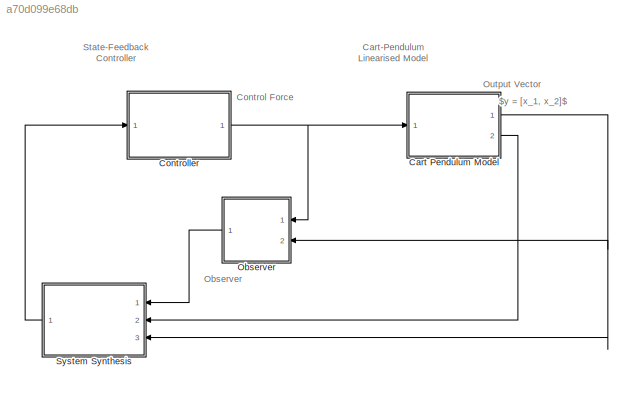
MODEL slx_a70d099e68db
KIND model
CONFIG AbsTol = auto
CONFIG EnableMultiTasking = off
CONFIG FixedStep = auto
CONFIG MaxStep = auto
CONFIG MinStep = auto
CONFIG RelTol = 1e-3
CONFIG SampleTimeConstraint = Unconstrained
CONFIG Solver = ode4
CONFIG SolverName = ode4
CONFIG StartTime = 0.0
CONFIG StopTime = 10.0
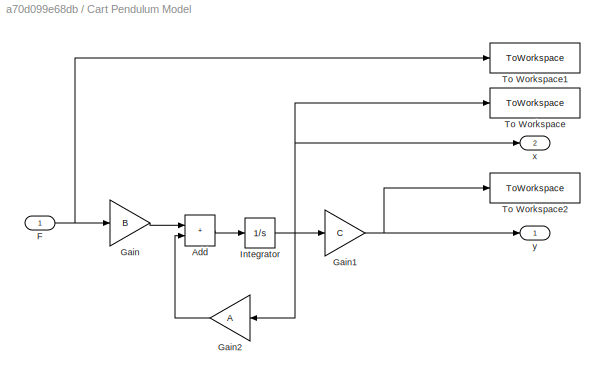
BLOCK [SubSystem] Cart Pendulum Model 
  Ports = [1, 2]
  RequestExecContextInheritance = off
BLOCK [Sum] Cart Pendulum Model /Add
  IconShape = rectangular
  Ports = [2, 1]
BLOCK [Inport] Cart Pendulum Model /F
BLOCK [Gain] Cart Pendulum Model /Gain
  Gain = B
  Multiplication = Matrix(K*u)
BLOCK [Gain] Cart Pendulum Model /Gain1
  Gain = C
  Multiplication = Matrix(K*u)
BLOCK [Gain] Cart Pendulum Model /Gain2
  Gain = A
  Multiplication = Matrix(K*u)
  NameLocation = top
BLOCK [Integrator] Cart Pendulum Model /Integrator
  InitialCondition = initial_conditions_linear
  Ports = [1, 1]
BLOCK [ToWorkspace] Cart Pendulum Model /To Workspace
  FixptAsFi = on
  MaxDataPoints = inf
  Ports = [1]
  SampleTime = -1
  VariableName = x
BLOCK [ToWorkspace] Cart Pendulum Model /To Workspace1
  FixptAsFi = on
  MaxDataPoints = inf
  Ports = [1]
  SampleTime = -1
  VariableName = F
BLOCK [ToWorkspace] Cart Pendulum Model /To Workspace2
  FixptAsFi = on
  MaxDataPoints = inf
  Ports = [1]
  SampleTime = -1
  VariableName = y
BLOCK [Outport] Cart Pendulum Model /x
  Port = 2
BLOCK [Outport] Cart Pendulum Model /y
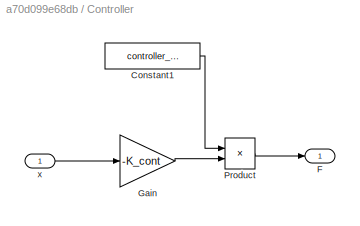
BLOCK [SubSystem] Controller
  Ports = [1, 1]
  RequestExecContextInheritance = off
BLOCK [Constant] Controller/Constant1
  Value = controller_enabled
BLOCK [Outport] Controller/F
BLOCK [Gain] Controller/Gain
  Gain = -K_cont
  Multiplication = Matrix(K*u)
BLOCK [Product] Controller/Product
  Ports = [2, 1]
BLOCK [Inport] Controller/x
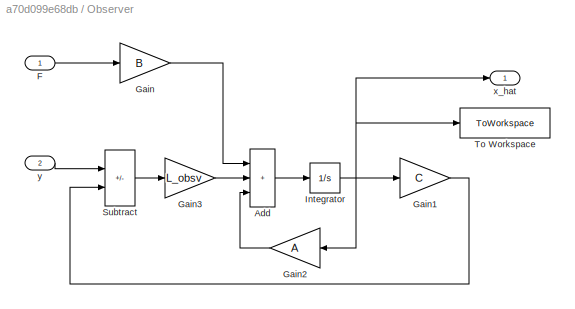
BLOCK [SubSystem] Observer
  Ports = [2, 1]
  RequestExecContextInheritance = off
BLOCK [Sum] Observer/Add
  IconShape = rectangular
  Inputs = 3
  Ports = [3, 1]
BLOCK [Inport] Observer/F
BLOCK [Gain] Observer/Gain
  Gain = B
  Multiplication = Matrix(K*u)
BLOCK [Gain] Observer/Gain1
  Gain = C
  Multiplication = Matrix(K*u)
BLOCK [Gain] Observer/Gain2
  Gain = A
  Multiplication = Matrix(K*u)
  NameLocation = top
BLOCK [Gain] Observer/Gain3
  Gain = L_obsv
  Multiplication = Matrix(K*u)
BLOCK [Integrator] Observer/Integrator
  Ports = [1, 1]
BLOCK [Sum] Observer/Subtract
  IconShape = rectangular
  Inputs = +-
  Ports = [2, 1]
BLOCK [ToWorkspace] Observer/To Workspace
  FixptAsFi = on
  MaxDataPoints = inf
  Ports = [1]
  SampleTime = -1
  VariableName = x_hat
BLOCK [Outport] Observer/x_hat
BLOCK [Inport] Observer/y
  Port = 2
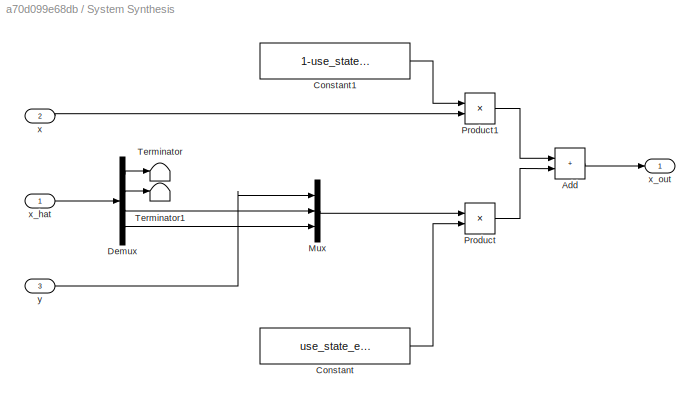
BLOCK [SubSystem] System Synthesis
  Ports = [3, 1]
  RequestExecContextInheritance = off
BLOCK [Sum] System Synthesis/Add
  IconShape = rectangular
  Ports = [2, 1]
BLOCK [Constant] System Synthesis/Constant
  Value = use_state_estimates
BLOCK [Constant] System Synthesis/Constant1
  Value = 1-use_state_estimates
BLOCK [Demux] System Synthesis/Demux
  Ports = [1, 4]
BLOCK [Mux] System Synthesis/Mux
  DisplayOption = bar
  Inputs = 3
  Ports = [3, 1]
BLOCK [Product] System Synthesis/Product
  Ports = [2, 1]
BLOCK [Product] System Synthesis/Product1
  Ports = [2, 1]
BLOCK [Terminator] System Synthesis/Terminator
BLOCK [Terminator] System Synthesis/Terminator1
BLOCK [Inport] System Synthesis/x
  Port = 2
BLOCK [Inport] System Synthesis/x_hat
BLOCK [Outport] System Synthesis/x_out
BLOCK [Inport] System Synthesis/y
  Port = 3
ANNOTATION (root): Cart-Pendulum Linearised Model
ANNOTATION (root): State-Feedback Controller
ANNOTATION (root): Observer
ANNOTATION (root): Output Vector
ANNOTATION (root): Control Force
ANNOTATION (root): $y = [x_1, x_2]$
LINE Cart Pendulum Model /Add:1 -> Cart Pendulum Model /Integrator:1
NET Cart Pendulum Model /F:1 -> Cart Pendulum Model /Gain:1, Cart Pendulum Model /To Workspace1:1
NET Cart Pendulum Model /Gain1:1 -> Cart Pendulum Model /To Workspace2:1, Cart Pendulum Model /y:1
LINE Cart Pendulum Model /Gain2:1 -> Cart Pendulum Model /Add:2
LINE Cart Pendulum Model /Gain:1 -> Cart Pendulum Model /Add:1
NET Cart Pendulum Model /Integrator:1 -> Cart Pendulum Model /Gain1:1, Cart Pendulum Model /Gain2:1, Cart Pendulum Model /To Workspace:1, Cart Pendulum Model /x:1
NET Cart Pendulum Model :1 -> Observer:2, System Synthesis:3
LINE Cart Pendulum Model :2 -> System Synthesis:2
LINE Controller/Constant1:1 -> Controller/Product:1
LINE Controller/Gain:1 -> Controller/Product:2
LINE Controller/Product:1 -> Controller/F:1
LINE Controller/x:1 -> Controller/Gain:1
NET Controller:1 -> Cart Pendulum Model :1, Observer:1
LINE Observer/Add:1 -> Observer/Integrator:1
LINE Observer/F:1 -> Observer/Gain:1
LINE Observer/Gain1:1 -> Observer/Subtract:2
LINE Observer/Gain2:1 -> Observer/Add:3
LINE Observer/Gain3:1 -> Observer/Add:2
LINE Observer/Gain:1 -> Observer/Add:1
NET Observer/Integrator:1 -> Observer/Gain1:1, Observer/Gain2:1, Observer/To Workspace:1, Observer/x_hat:1
LINE Observer/Subtract:1 -> Observer/Gain3:1
LINE Observer/y:1 -> Observer/Subtract:1
LINE Observer:1 -> System Synthesis:1
LINE System Synthesis/Add:1 -> System Synthesis/x_out:1
LINE System Synthesis/Constant1:1 -> System Synthesis/Product1:1
LINE System Synthesis/Constant:1 -> System Synthesis/Product:2
LINE System Synthesis/Demux:1 -> System Synthesis/Terminator:1
LINE System Synthesis/Demux:2 -> System Synthesis/Terminator1:1
LINE System Synthesis/Demux:3 -> System Synthesis/Mux:2
LINE System Synthesis/Demux:4 -> System Synthesis/Mux:3
LINE System Synthesis/Mux:1 -> System Synthesis/Product:1
LINE System Synthesis/Product1:1 -> System Synthesis/Add:1
LINE System Synthesis/Product:1 -> System Synthesis/Add:2
LINE System Synthesis/x:1 -> System Synthesis/Product1:2
LINE System Synthesis/x_hat:1 -> System Synthesis/Demux:1
LINE System Synthesis/y:1 -> System Synthesis/Mux:1
LINE System Synthesis:1 -> Controller:1
note: NET lines group one-source signal fan-out (src -> all destinations, sorted); 1:1 wires keep LINE
